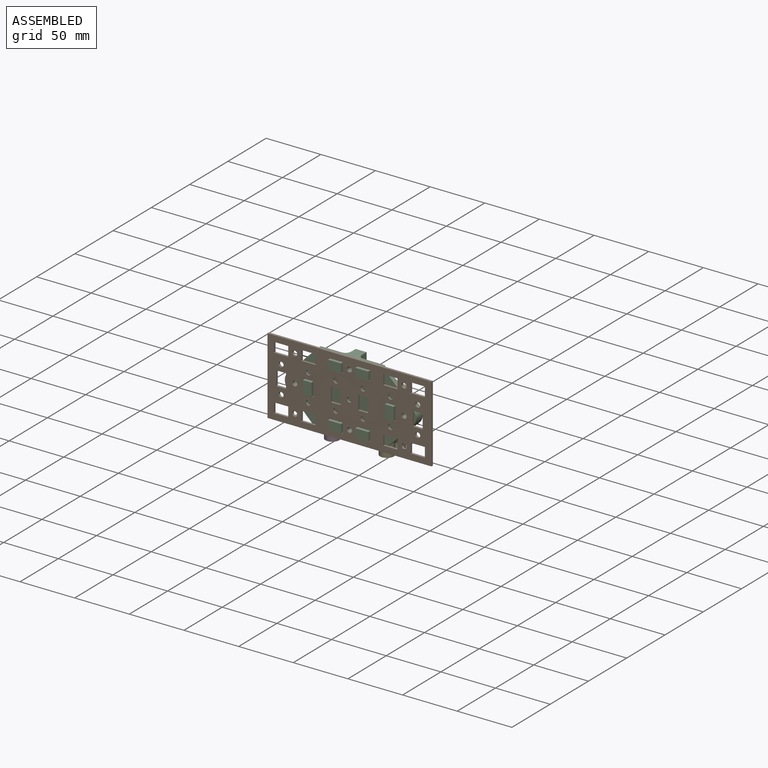
[diagram: assembled view]
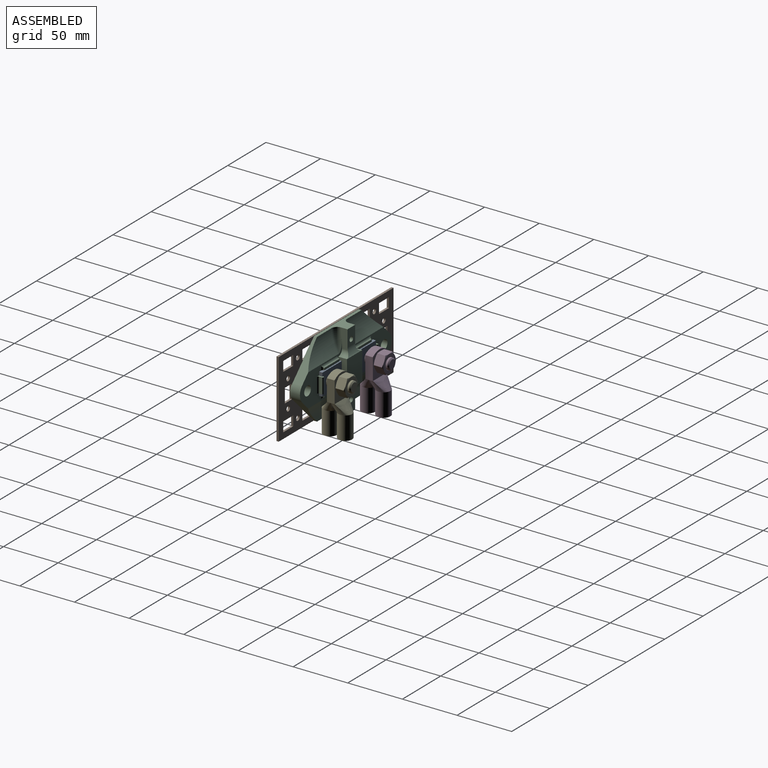
[diagram: assembled view, second angle]
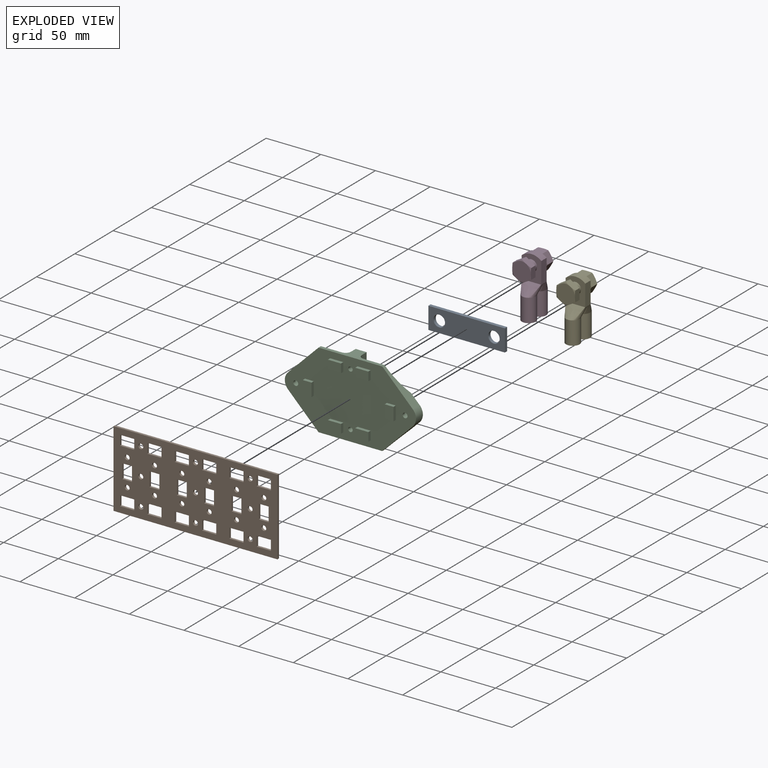
[diagram: exploded view]
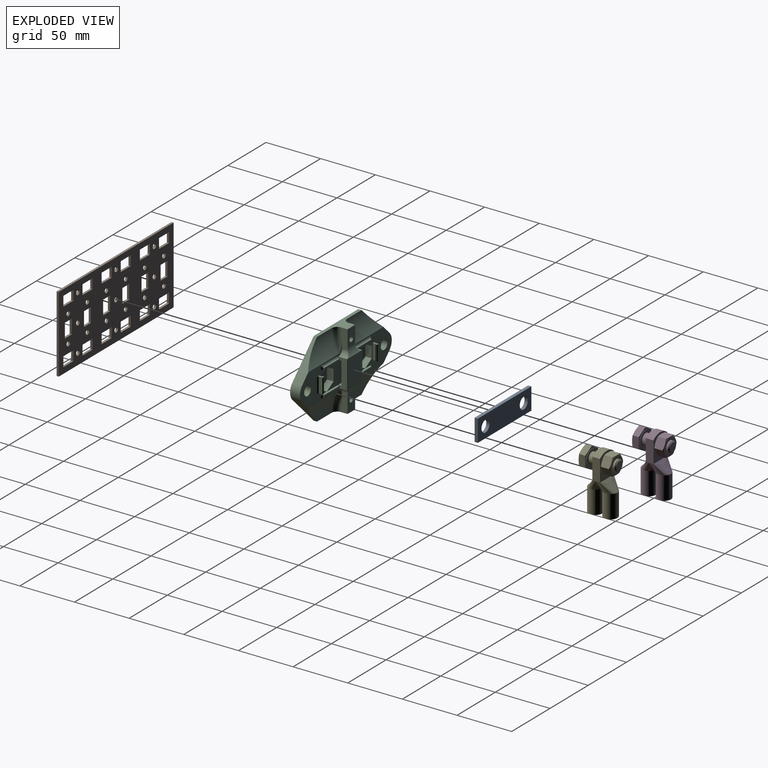
[diagram: exploded view, second angle]
FCSTD DOCUMENT  (FreeCAD 1.0R39109 (Git))
Label: PIM_cable_holder_busbar
License: All rights reserved
LicenseURL: https://en.wikipedia.org/wiki/All_rights_reserved
objects: Sketcher::SketchObject×11, PartDesign::Pad×7, PartDesign::Body×5, Part::FeaturePython×5, App::Link×5, PartDesign::Pocket×4, PartDesign::SubShapeBinder×2, App::Part×2, PartDesign::Fillet×2, PartDesign::Mirrored×2, PartDesign::LinearPattern×1, Part::Feature×1, PartDesign::FeatureBase×1, App::FeaturePython×1, Assembly::JointGroup×1, Assembly::AssemblyObject×1
note: 82 computed .brp shape members not serialized (recipe doc carries the construction recipe); baked Part::Feature solids carry a one-line shape summary decoded from their .brp

FEATURE [Sketcher::SketchObject] Sketch
  ArcFitTolerance = 1e-06
  AttachmentSupport = -> [XZ_Plane]
  FullyConstrained = true
  MakeInternals = false
  MapMode = 5
  Placement = pos=(0,0,0) rot=(1,0,0;1.5708rad)
  sketch-geometry (54):
    g0: Circle CenterX=0 CenterY=-7e-16 CenterZ=0 NormalX=0 NormalY=0 NormalZ=1 AngleXU=0 Radius=2.25
    g1: Circle CenterX=0 CenterY=-25 CenterZ=0 NormalX=0 NormalY=0 NormalZ=1 AngleXU=0 Radius=2.25
    g2: Circle CenterX=0 CenterY=25 CenterZ=0 NormalX=0 NormalY=0 NormalZ=1 AngleXU=0 Radius=2.25
    g3: LineSegment [constr] StartX=-12.5 StartY=-12.5 StartZ=0 EndX=12.5 EndY=-12.5 EndZ=0
    g4: LineSegment [constr] StartX=12.5 StartY=-12.5 StartZ=0 EndX=12.5 EndY=12.5 EndZ=0
    g5: LineSegment [constr] StartX=12.5 StartY=12.5 StartZ=0 EndX=-12.5 EndY=12.5 EndZ=0
    g6: LineSegment [constr] StartX=-12.5 StartY=12.5 StartZ=0 EndX=-12.5 EndY=-12.5 EndZ=0
    g7: GeomPoint [constr] X=0 Y=-7e-16 Z=0
    g8: LineSegment [constr] StartX=-12.5 StartY=-25 StartZ=0 EndX=12.5 EndY=-25 EndZ=0
    g9: LineSegment [constr] StartX=12.5 StartY=-25 StartZ=0 EndX=12.5 EndY=25 EndZ=0
    g10: LineSegment [constr] StartX=12.5 StartY=25 StartZ=0 EndX=-12.5 EndY=25 EndZ=0
    g11: LineSegment [constr] StartX=-12.5 StartY=25 StartZ=0 EndX=-12.5 EndY=-25 EndZ=0
    g12: GeomPoint [constr] X=0 Y=-7e-16 Z=0
    g13: LineSegment StartX=-19 StartY=20.5 StartZ=0 EndX=-6 EndY=20.5 EndZ=0
    g14: LineSegment StartX=-6 StartY=20.5 StartZ=0 EndX=-6 EndY=29.5 EndZ=0
    g15: LineSegment StartX=-6 StartY=29.5 StartZ=0 EndX=-19 EndY=29.5 EndZ=0
    g16: LineSegment StartX=-19 StartY=29.5 StartZ=0 EndX=-19 EndY=20.5 EndZ=0
    g17: GeomPoint [constr] X=-12.5 Y=25 Z=0
    g18: LineSegment StartX=-19 StartY=-29.5 StartZ=0 EndX=-6 EndY=-29.5 EndZ=0
    g19: LineSegment StartX=-6 StartY=-29.5 StartZ=0 EndX=-6 EndY=-20.5 EndZ=0
    g20: LineSegment StartX=-6 StartY=-20.5 StartZ=0 EndX=-19 EndY=-20.5 EndZ=0
    g21: LineSegment StartX=-19 StartY=-20.5 StartZ=0 EndX=-19 EndY=-29.5 EndZ=0
    g22: GeomPoint [constr] X=-12.5 Y=-25 Z=0
    g23: LineSegment StartX=6 StartY=-29.5 StartZ=0 EndX=19 EndY=-29.5 EndZ=0
    g24: LineSegment StartX=19 StartY=-29.5 StartZ=0 EndX=19 EndY=-20.5 EndZ=0
    g25: LineSegment StartX=19 StartY=-20.5 StartZ=0 EndX=6 EndY=-20.5 EndZ=0
    g26: LineSegment StartX=6 StartY=-20.5 StartZ=0 EndX=6 EndY=-29.5 EndZ=0
    g27: GeomPoint [constr] X=12.5 Y=-25 Z=0
    g28: LineSegment StartX=6 StartY=29.5 StartZ=0 EndX=6 EndY=20.5 EndZ=0
    g29: LineSegment StartX=6 StartY=20.5 StartZ=0 EndX=19 EndY=20.5 EndZ=0
    g30: LineSegment StartX=19 StartY=20.5 StartZ=0 EndX=19 EndY=29.5 EndZ=0
    g31: LineSegment StartX=19 StartY=29.5 StartZ=0 EndX=6 EndY=29.5 EndZ=0
    g32: GeomPoint [constr] X=12.5 Y=25 Z=0
    g33: GeomPoint X=-12.5 Y=0 Z=0
    g34: GeomPoint X=12.5 Y=0 Z=0
    g35: LineSegment StartX=-17 StartY=6.5 StartZ=0 EndX=-17 EndY=-6.5 EndZ=0
    g36: LineSegment StartX=-17 StartY=-6.5 StartZ=0 EndX=-8 EndY=-6.5 EndZ=0
    g37: LineSegment StartX=-8 StartY=-6.5 StartZ=0 EndX=-8 EndY=6.5 EndZ=0
    g38: LineSegment StartX=-8 StartY=6.5 StartZ=0 EndX=-17 EndY=6.5 EndZ=0
    g39: GeomPoint [constr] X=-12.5 Y=0 Z=0
    g40: LineSegment StartX=8 StartY=6.5 StartZ=0 EndX=8 EndY=-6.5 EndZ=0
    g41: LineSegment StartX=8 StartY=-6.5 StartZ=0 EndX=17 EndY=-6.5 EndZ=0
    g42: LineSegment StartX=17 StartY=-6.5 StartZ=0 EndX=17 EndY=6.5 EndZ=0
    g43: LineSegment StartX=17 StartY=6.5 StartZ=0 EndX=8 EndY=6.5 EndZ=0
    g44: GeomPoint [constr] X=12.5 Y=0 Z=0
    g45: Circle CenterX=-12.5 CenterY=12.5 CenterZ=0 NormalX=0 NormalY=0 NormalZ=1 AngleXU=0 Radius=2.25
    g46: Circle CenterX=12.5 CenterY=12.5 CenterZ=0 NormalX=0 NormalY=0 NormalZ=1 AngleXU=0 Radius=2.25
    g47: Circle CenterX=12.5 CenterY=-12.5 CenterZ=0 NormalX=0 NormalY=0 NormalZ=1 AngleXU=0 Radius=2.25
    g48: Circle CenterX=-12.5 CenterY=-12.5 CenterZ=0 NormalX=0 NormalY=0 NormalZ=1 AngleXU=0 Radius=2.25
    g49: LineSegment StartX=-25 StartY=-35 StartZ=0 EndX=25 EndY=-35 EndZ=0
    g50: LineSegment StartX=25 StartY=-35 StartZ=0 EndX=25 EndY=35 EndZ=0
    g51: LineSegment StartX=25 StartY=35 StartZ=0 EndX=-25 EndY=35 EndZ=0
    g52: LineSegment StartX=-25 StartY=35 StartZ=0 EndX=-25 EndY=-35 EndZ=0
    g53: GeomPoint [constr] X=0 Y=-7e-16 Z=0
  constraints (128):
    c: Diameter(g0) = 4.5
    c: Coincident(g0,g-1)
    c: PointOnObject(g1,g-2)
    c: PointOnObject(g2,g-2)
    c: Coincident(g3,g4)
    c: Coincident(g4,g5)
    c: Coincident(g5,g6)
    c: Coincident(g6,g3)
    c: Horizontal(g3)
    c: Horizontal(g5)
    c: Vertical(g4)
    c: Vertical(g6)
    c: Symmetric(g5,g3,g7)
    c: Coincident(g7,g0)
    c: Coincident(g8,g9)
    c: Coincident(g9,g10)
    c: Coincident(g10,g11)
    c: Coincident(g11,g8)
    c: Horizontal(g8)
    c: Horizontal(g10)
    c: Vertical(g9)
    c: Vertical(g11)
    c: Symmetric(g10,g8,g12)
    c: Coincident(g12,g0)
    c: Coincident(g13,g14)
    c: Coincident(g14,g15)
    c: Coincident(g15,g16)
    c: Coincident(g16,g13)
    c: Horizontal(g13)
    c: Horizontal(g15)
    c: Vertical(g14)
    c: Vertical(g16)
    c: Symmetric(g15,g13,g17)
    c: Distance(g14,g16) = 13
    c: Distance(g13,g15) = 9
    c: Coincident(g17,g10)
    c: Coincident(g18,g19)
    c: Coincident(g19,g20)
    c: Coincident(g20,g21)
    c: Coincident(g21,g18)
    c: Horizontal(g18)
    c: Horizontal(g20)
    c: Vertical(g19)
    c: Vertical(g21)
    c: Symmetric(g20,g18,g22)
    c: Coincident(g22,g8)
    c: Coincident(g23,g24)
    c: Coincident(g24,g25)
    c: Coincident(g25,g26)
    c: Coincident(g26,g23)
    c: Horizontal(g23)
    c: Horizontal(g25)
    c: Vertical(g24)
    c: Vertical(g26)
    c: Symmetric(g25,g23,g27)
    c: Coincident(g27,g8)
    c: Coincident(g28,g29)
    c: Coincident(g29,g30)
    c: Coincident(g30,g31)
    c: Coincident(g31,g28)
    c: Vertical(g28)
    c: Vertical(g30)
    c: Horizontal(g29)
    c: Horizontal(g31)
    c: Symmetric(g30,g28,g32)
    c: Coincident(g32,g9)
    c: PointOnObject(g33,g11)
    c: PointOnObject(g34,g9)
    c: PointOnObject(g34,g-1)
    c: PointOnObject(g33,g-1)
    c: Coincident(g35,g36)
    c: Coincident(g36,g37)
    c: Coincident(g37,g38)
    c: Coincident(g38,g35)
    c: Vertical(g35)
    c: Vertical(g37)
    c: Horizontal(g36)
    c: Horizontal(g38)
    c: Symmetric(g37,g35,g39)
    c: Coincident(g39,g33)
    c: Coincident(g40,g41)
    c: Coincident(g41,g42)
    c: Coincident(g42,g43)
    c: Coincident(g43,g40)
    c: Vertical(g40)
    c: Vertical(g42)
    c: Horizontal(g41)
    c: Horizontal(g43)
    c: Symmetric(g42,g40,g44)
    c: Coincident(g44,g34)
    c: PointOnObject(g5,g11)
    c: PointOnObject(g1,g8)
    c: PointOnObject(g2,g10)
    c: Coincident(g45,g5)
    c: Coincident(g46,g4)
    c: Coincident(g47,g3)
    c: Coincident(g48,g3)
    c: Equal(g1,g48)
    c: Equal(g48,g45)
    c: Equal(g45,g46)
    c: Equal(g46,g47)
    c: Equal(g47,g2)
    c: Equal(g2,g0)
    c: Equal(g15,g31)
    c: Equal(g31,g25)
    c: Equal(g25,g20)
    c: Equal(g20,g37)
    c: Equal(g37,g40)
    c: Equal(g16,g38)
    c: Equal(g38,g21)
    c: Equal(g21,g26)
    c: Equal(g26,g41)
    c: Equal(g41,g30)
    c: DistanceY(g18,g15) = 59
    c: DistanceX(g15,g30) = 38
    c: DistanceY(g3,g4) = 25
    c: Coincident(g49,g50)
    c: Coincident(g50,g51)
    c: Coincident(g51,g52)
    c: Coincident(g52,g49)
    c: Horizontal(g49)
    c: Horizontal(g51)
    c: Vertical(g50)
    c: Vertical(g52)
    c: Symmetric(g51,g49,g53)
    c: Distance(g50,g52) = 50
    c: Distance(g49,g51) = 70
    c: Coincident(g53,g0)
FEATURE [PartDesign::Pad] Pad
  Direction = (0,-1,2e-16)
  Length = 2
  Length2 = 10
  Placement = pos=(0,0,0) rot=(1,0,0;1.5708rad)
  Profile = -> Sketch
  ReferenceAxis = -> Sketch [N_Axis]
  Refine = true
  Reversed = true
  Suppressed = false
  Type = 0
FEATURE [PartDesign::LinearPattern] LinearPattern
  BaseFeature = -> Pad
  Direction = -> X_Axis
  Length = 100
  Mode = 1
  Occurrences = 3
  Offset = 50
  Placement = pos=(0,0,0) rot=(1,0,0;1.5708rad)
  Refine = true
  Suppressed = false
  TransformMode = 1
FEATURE [PartDesign::Body] Body  label="baseplate"
  AllowCompound = false
  Group = -> [Sketch,Pad,LinearPattern]
  Origin = -> Origin
  Tip = -> LinearPattern
FEATURE [Part::FeaturePython] Screw  label="M10x25-Screw"  # WARN: FeaturePython — macro-defined, semantics opaque (R4)
  Diameter = 10
  Invert = false
  LeftHanded = false
  Length = 1
  LengthCustom = 25
  MatchOuter = false
  OffsetAngle = 0
  Placement = pos=(25,12,1.6e-15) rot=(-0.935113,0.250563,-0.250563;4.64535rad)
  Thread = false
  Type = 40
FEATURE [Sketcher::SketchObject] Sketch002
  ArcFitTolerance = 1e-06
  AttachmentSupport = -> [XZ_Plane002]
  FullyConstrained = true
  MakeInternals = false
  MapMode = 5
  Placement = pos=(0,0,0) rot=(1,0,0;1.5708rad)
  sketch-geometry (7):
    g0: LineSegment StartX=15 StartY=-10 StartZ=0 EndX=85 EndY=-10 EndZ=0
    g1: LineSegment StartX=85 StartY=-10 StartZ=0 EndX=85 EndY=10 EndZ=0
    g2: LineSegment StartX=85 StartY=10 StartZ=0 EndX=15 EndY=10 EndZ=0
    g3: LineSegment StartX=15 StartY=10 StartZ=0 EndX=15 EndY=-10 EndZ=0
    g4: GeomPoint [constr] X=50 Y=0 Z=0
    g5: Circle CenterX=25 CenterY=0 CenterZ=0 NormalX=0 NormalY=0 NormalZ=1 AngleXU=0 Radius=5.25
    g6: Circle CenterX=75 CenterY=0 CenterZ=0 NormalX=0 NormalY=0 NormalZ=1 AngleXU=0 Radius=5.25
  constraints (18):
    c: Coincident(g0,g1)
    c: Coincident(g1,g2)
    c: Coincident(g2,g3)
    c: Coincident(g3,g0)
    c: Horizontal(g0)
    c: Horizontal(g2)
    c: Vertical(g1)
    c: Vertical(g3)
    c: Symmetric(g2,g0,g4)
    c: Distance(g1,g3) = 70
    c: Distance(g0,g2) = 20
    c: PointOnObject(g4,g-1)
    c: Diameter(g5) = 10.5
    c: PointOnObject(g5,g-1)
    c: DistanceX(g5,g6) = 50
    c: Symmetric(g5,g6,g4)
    c: Distance(g-1,g3) = 15
    c: Equal(g5,g6)
FEATURE [PartDesign::Pad] Pad002
  Direction = (0,-1,2e-16)
  Length = 3
  Length2 = 10
  Placement = pos=(0,0,0) rot=(1,0,0;1.5708rad)
  Profile = -> Sketch002
  ReferenceAxis = -> Sketch002 [N_Axis]
  Refine = true
  Suppressed = false
  Type = 0
FEATURE [PartDesign::Body] Body002  label="Busbar"
  AllowCompound = false
  Group = -> [Sketch002,Pad002]
  Origin = -> Origin002
  Placement = pos=(0,14,0) rot=(0,0,1;0rad)
  Tip = -> Pad002
FEATURE [Part::FeaturePython] Nut  label="M10-Nut"  # WARN: FeaturePython — macro-defined, semantics opaque (R4)
  Diameter = 10
  Invert = false
  LeftHanded = false
  MatchOuter = false
  OffsetAngle = 0
  Placement = pos=(25,26,2e-16) rot=(1,0,0;4.71239rad)
  Thread = false
  Type = 31
FEATURE [Part::Feature] Part__Feature  label="cosse_top"
  Placement = pos=(25,22,0) rot=(0,0,1;0rad)
  shape: bbox 18.79 x 13.68 x 53 mm, 18 faces (baked)
FEATURE [PartDesign::FeatureBase] Clone
  BaseFeature = -> Part__Feature
  Placement = pos=(25,20,0) rot=(0,0,1;0rad)
  Suppressed = false
FEATURE [PartDesign::Body] Body003  label="cosse_bot"
  AllowCompound = false
  Group = -> [Clone]
  Origin = -> Origin003
  Placement = pos=(50,42,0) rot=(0,0,1;3.14159rad)
  Tip = -> Clone
FEATURE [PartDesign::SubShapeBinder] Binder
  BindCopyOnChange = 0
  BindMode = 0
  ClaimChildren = false
  Context = -> Part [Body004.Binder.]
  Fuse = false
  MakeFace = true
  OffsetFill = false
  OffsetIntersection = false
  OffsetJoinType = 0
  OffsetOpenResult = false
  PartialLoad = false
  Refine = true
  Relative = true
  Support = -> [Body[LinearPattern.Face98]]
  _Version = 2
FEATURE [Sketcher::SketchObject] Sketch003
  ArcFitTolerance = 1e-06
  AttachmentSupport = -> [Binder]
  ExternalGeometry = -> [Binder]
  FullyConstrained = true
  MakeInternals = false
  MapMode = 5
  Placement = pos=(0,2,-9e-16) rot=(0,0.707107,0.707107;3.14159rad)
  sketch-geometry (11):
    g0: LineSegment StartX=-50 StartY=-35 StartZ=0 EndX=-20.8579 EndY=-35 EndZ=0
    g1: LineSegment StartX=-20.8579 StartY=-35 StartZ=0 EndX=7.07107 EndY=-7.07107 EndZ=0
    g2: ArcOfCircle CenterX=0 CenterY=0 CenterZ=0 NormalX=0 NormalY=0 NormalZ=1 AngleXU=0 Radius=10 StartAngle=5.49779 EndAngle=7.06858
    g3: LineSegment StartX=7.07107 StartY=7.07107 StartZ=0 EndX=-20.8579 EndY=35 EndZ=0
    g4: LineSegment StartX=-20.8579 StartY=35 StartZ=0 EndX=-50 EndY=35 EndZ=0
    g5: LineSegment StartX=-50 StartY=-35 StartZ=0 EndX=-50 EndY=-27.05 EndZ=0
    g6: Circle CenterX=0 CenterY=0 CenterZ=0 NormalX=0 NormalY=0 NormalZ=1 AngleXU=0 Radius=2.25
    g7: ArcOfCircle CenterX=-50 CenterY=-25 CenterZ=0 NormalX=0 NormalY=0 NormalZ=1 AngleXU=0 Radius=2.05 StartAngle=4.71239 EndAngle=7.85398
    g8: LineSegment StartX=-50 StartY=-22.95 StartZ=0 EndX=-50 EndY=22.95 EndZ=0
    g9: ArcOfCircle CenterX=-50 CenterY=25 CenterZ=0 NormalX=0 NormalY=0 NormalZ=1 AngleXU=0 Radius=2.05 StartAngle=4.71239 EndAngle=7.85398
    g10: LineSegment StartX=-50 StartY=27.05 StartZ=0 EndX=-50 EndY=35 EndZ=0
  constraints (28):
    c: Symmetric(g-4,g-4,g0)
    c: PointOnObject(g0,g-4)
    c: Coincident(g0,g1)
    c: Coincident(g2,g-1)
    c: PointOnObject(g3,g-5)
    c: Coincident(g4,g3)
    c: Symmetric(g-5,g-5,g4)
    c: Coincident(g5,g0)
    c: Coincident(g10,g4)
    c: Coincident(g6,g2)
    c: Tangent(g6,g-3)
    c: Vertical(g0,g3)
    c: Angle(g-4,g1) = 0.785398
    c: Radius(g2) = 10
    c: Tangent(g2,g1) = -1.5708
    c: Tangent(g3,g2) = -1.5708
    c: Coincident(g7,g-7)
    c: Coincident(g5,g7)
    c: Vertical(g8)
    c: Vertical(g5)
    c: Coincident(g9,g-8)
    c: Coincident(g8,g9)
    c: Coincident(g10,g9)
    c: Vertical(g10)
    c: Vertical(g8,g9)
    c: Coincident(g7,g8)
    c: Equal(g9,g7)
    c: Radius(g7) = 2.05
FEATURE [PartDesign::Pad] Pad003
  Direction = (0,1,-2e-16)
  Length = 9
  Length2 = 10
  Profile = -> Sketch003
  ReferenceAxis = -> Sketch003 [N_Axis]
  Refine = true
  Suppressed = false
  Type = 0
FEATURE [Sketcher::SketchObject] Sketch004
  ArcFitTolerance = 1e-06
  AttachmentSupport = -> [Pad003]
  FullyConstrained = true
  MakeInternals = false
  MapMode = 5
  Placement = pos=(0,11,0) rot=(0,0.707107,0.707107;3.14159rad)
  sketch-geometry (8):
    g0: Circle CenterX=0 CenterY=0 CenterZ=0 NormalX=0 NormalY=0 NormalZ=1 AngleXU=0 Radius=4.35
    g1: LineSegment StartX=-16.1232 StartY=-5.125 StartZ=0 EndX=-16.1232 EndY=5.125 EndZ=0
    g2: LineSegment StartX=-16.1232 StartY=5.125 StartZ=0 EndX=-25 EndY=10.25 EndZ=0
    g3: LineSegment StartX=-25 StartY=10.25 StartZ=0 EndX=-33.8768 EndY=5.125 EndZ=0
    g4: LineSegment StartX=-33.8768 StartY=5.125 StartZ=0 EndX=-33.8768 EndY=-5.125 EndZ=0
    g5: LineSegment StartX=-33.8768 StartY=-5.125 StartZ=0 EndX=-25 EndY=-10.25 EndZ=0
    g6: LineSegment StartX=-25 StartY=-10.25 StartZ=0 EndX=-16.1232 EndY=-5.125 EndZ=0
    g7: Circle [constr] CenterX=-25 CenterY=0 CenterZ=0 NormalX=0 NormalY=0 NormalZ=1 AngleXU=0 Radius=10.25
  constraints (19):
    c: Diameter(g0) = 8.7
    c: Coincident(g0,g-1)
    c: Coincident(g1,g2)
    c: Coincident(g2,g3)
    c: Coincident(g3,g4)
    c: Coincident(g4,g5)
    c: Coincident(g5,g6)
    c: Coincident(g6,g1)
    c: Equal(g1, g2-g6) x5
    c: PointOnObject(g1,g7)
    c: PointOnObject(g2,g7)
    c: PointOnObject(g3,g7)
    c: PointOnObject(g4,g7)
    c: PointOnObject(g5,g7)
    c: PointOnObject(g6,g7)
    c: Vertical(g1)
    c: DistanceY(g5,g2) = 20.5
    c: PointOnObject(g7,g-1)
    c: DistanceX(g7,g0) = 25
FEATURE [PartDesign::Pocket] Pocket
  BaseFeature = -> Pad003
  Direction = (0,-1,2e-16)
  Length = 6
  Length2 = 5
  Profile = -> Sketch004
  ReferenceAxis = -> Sketch004 [N_Axis]
  Refine = true
  Suppressed = false
  Type = 0
FEATURE [Sketcher::SketchObject] Sketch005
  ArcFitTolerance = 1e-06
  AttachmentSupport = -> [Pocket]
  ExternalGeometry = -> [Pocket]
  FullyConstrained = true
  MakeInternals = false
  MapMode = 5
  Placement = pos=(50,0,0) rot=(0.57735,0.57735,0.57735;2.0944rad)
  sketch-geometry (3):
    g0: LineSegment StartX=11 StartY=-35 StartZ=0 EndX=5 EndY=-35 EndZ=0
    g1: LineSegment StartX=11 StartY=-15 StartZ=0 EndX=11 EndY=-35 EndZ=0
    g2: ArcOfCircle CenterX=39.9977 CenterY=-34.5993 CenterZ=0 NormalX=0 NormalY=0 NormalZ=1 AngleXU=0 Radius=35 StartAngle=2.54723 EndAngle=3.15304
  constraints (9):
    c: Coincident(g-5,g0)
    c: PointOnObject(g0,g-4)
    c: PointOnObject(g1,g-5)
    c: Coincident(g1,g0)
    c: DistanceX(g-4,g0) = 3
    c: Coincident(g2,g1)
    c: Coincident(g2,g0)
    c: DistanceY(g1,g1) = 20
    c: Radius(g2) = 35
FEATURE [PartDesign::Pocket] Pocket001
  BaseFeature = -> Pocket
  Direction = (-1,0,0)
  Length = 50
  Length2 = -5
  Profile = -> Sketch005
  ReferenceAxis = -> Sketch005 [N_Axis]
  Refine = true
  Suppressed = false
  Type = 4
FEATURE [Sketcher::SketchObject] Sketch007
  ArcFitTolerance = 1e-06
  ExternalGeometry = -> [Binder]
  FullyConstrained = true
  MakeInternals = false
  MapMode = 5
  Placement = pos=(0,2,0) rot=(1,0,0;1.5708rad)
  sketch-geometry (8):
    g0: LineSegment StartX=31.5 StartY=-29 StartZ=0 EndX=43.5 EndY=-29 EndZ=0
    g1: LineSegment StartX=43.5 StartY=-29 StartZ=0 EndX=43.5 EndY=-21 EndZ=0
    g2: LineSegment StartX=43.5 StartY=-21 StartZ=0 EndX=31.5 EndY=-21 EndZ=0
    g3: LineSegment StartX=31.5 StartY=-21 StartZ=0 EndX=31.5 EndY=-29 EndZ=0
    g4: LineSegment StartX=16.5 StartY=-6 StartZ=0 EndX=16.5 EndY=0 EndZ=0
    g5: LineSegment StartX=16.5 StartY=0 StartZ=0 EndX=8.5 EndY=0 EndZ=0
    g6: LineSegment StartX=8.5 StartY=0 StartZ=0 EndX=8.5 EndY=-6 EndZ=0
    g7: LineSegment StartX=8.5 StartY=-6 StartZ=0 EndX=16.5 EndY=-6 EndZ=0
  constraints (24):
    c: Coincident(g0,g1)
    c: Coincident(g1,g2)
    c: Coincident(g2,g3)
    c: Coincident(g3,g0)
    c: Horizontal(g0)
    c: Horizontal(g2)
    c: Vertical(g1)
    c: Vertical(g3)
    c: DistanceY(g1,g-4) = 0.5
    c: DistanceX(g1,g-4) = 0.5
    c: DistanceX(g-3,g0) = 0.5
    c: DistanceY(g-3,g0) = 0.5
    c: Coincident(g4,g5)
    c: Coincident(g5,g6)
    c: Coincident(g6,g7)
    c: Coincident(g7,g4)
    c: Vertical(g4)
    c: Vertical(g6)
    c: Horizontal(g5)
    c: Horizontal(g7)
    c: PointOnObject(g5,g-1)
    c: Distance(g5,g-6) = 0.5
    c: DistanceX(g4,g-5) = 0.5
    c: DistanceY(g-6,g6) = 0.5
FEATURE [PartDesign::Pad] Pad005
  BaseFeature = -> Pocket001
  Direction = (0,-1,2e-16)
  Length = 3
  Length2 = 10
  Profile = -> Sketch007
  ReferenceAxis = -> Sketch007 [N_Axis]
  Refine = true
  Suppressed = false
  Type = 0
FEATURE [Sketcher::SketchObject] Sketch008
  ArcFitTolerance = 1e-06
  AttachmentSupport = -> [XY_Plane005]
  FullyConstrained = true
  MakeInternals = false
  MapMode = 5
  sketch-geometry (7):
    g0: LineSegment StartX=14.9232 StartY=11 StartZ=0 EndX=14.9232 EndY=14.1 EndZ=0
    g1: LineSegment StartX=14.9232 StartY=14.1 StartZ=0 EndX=15.9232 EndY=14.1 EndZ=0
    g2: LineSegment StartX=15.9232 StartY=14.1 StartZ=0 EndX=15.2893 EndY=15.1981 EndZ=0
    g3: LineSegment StartX=13.4232 StartY=14.6981 StartZ=0 EndX=13.4232 EndY=12.5 EndZ=0
    g4: LineSegment StartX=14.9232 StartY=11 StartZ=0 EndX=11.9232 EndY=11 EndZ=0
    g5: ArcOfCircle CenterX=11.9232 CenterY=12.5 CenterZ=0 NormalX=0 NormalY=0 NormalZ=1 AngleXU=0 Radius=1.5 StartAngle=4.71239 EndAngle=6.28319
    g6: ArcOfCircle CenterX=14.4232 CenterY=14.6981 CenterZ=0 NormalX=0 NormalY=0 NormalZ=1 AngleXU=0 Radius=1 StartAngle=0.523599 EndAngle=3.14159
  constraints (19):
    c: PointOnObject(g0,g-4)
    c: Vertical(g0)
    c: Coincident(g1,g0)
    c: Horizontal(g1)
    c: Vertical(g3)
    c: Coincident(g4,g0)
    c: PointOnObject(g4,g-4)
    c: Tangent(g6,g2) = -1.5708
    c: Tangent(g6,g3) = -1.5708
    c: Tangent(g5,g3) = 1.5708
    c: Tangent(g5,g4) = 1.5708
    c: Radius(g5) = 1.5
    c: Distance(g0,g3) = 1.5
    c: DistanceX(g0,g-3) = 1.2
    c: Angle(g2,g1) = 1.0472
    c: Distance(g1,g1) = 1
    c: Coincident(g2,g1)
    c: Radius(g6) = 1
    c: DistanceY(g0,g0) = 3.1
FEATURE [App::Part] Part001  label="Lug"
  Group = -> [Nut,Screw,Body003,Part__Feature]
  Origin = -> Origin006
FEATURE [App::Link] baseplate  label="baseplate001"
  LinkPlacement = pos=(24.3,24.3,24.3) rot=(0,0,1;0rad)
  LinkedObject = -> Body
  Placement = pos=(24.3,24.3,24.3) rot=(0,0,1;0rad)
FEATURE [App::Link] Busbar  label="Busbar001"
  LinkPlacement = pos=(24.25,38.25,24.25) rot=(0,0,1;0rad)
  LinkedObject = -> Body002
  Placement = pos=(24.25,38.25,24.25) rot=(0,0,1;0rad)
FEATURE [App::Link] leftLug  label="Lug001"
  LinkPlacement = pos=(24,23,24) rot=(0,0,1;0rad)
  LinkedObject = -> Part001
  Placement = pos=(24,23,24) rot=(0,0,1;0rad)
FEATURE [App::Link] leftLug001  label="Lug002"
  LinkPlacement = pos=(74.0002,23.0001,24) rot=(0,0,1;0rad)
  LinkedObject = -> Part001
  Placement = pos=(74.0002,23.0001,24) rot=(0,0,1;0rad)
FEATURE [App::FeaturePython] GroundedJoint  # Assembly grounded joint (typed FeaturePython)
  ObjectToGround = -> baseplate
  Placement = pos=(24.3,24.3,24.3) rot=(0,0,1;0rad)
FEATURE [Assembly::JointGroup] Joints
  Group = -> [GroundedJoint]
FEATURE [App::Link] holder  label="holder001"
  LinkPlacement = pos=(24,24,24) rot=(0,0,1;0rad)
  LinkedObject = -> Part
  Placement = pos=(24,24,24) rot=(0,0,1;0rad)
FEATURE [PartDesign::SubShapeBinder] Binder001
  BindCopyOnChange = 0
  BindMode = 0
  ClaimChildren = false
  Fuse = false
  MakeFace = true
  OffsetFill = false
  OffsetIntersection = false
  OffsetJoinType = 0
  OffsetOpenResult = false
  PartialLoad = false
  Refine = true
  Relative = true
  Support = -> [Body[LinearPattern.Face98]]
  _Version = 2
FEATURE [Sketcher::SketchObject] Sketch009
  ArcFitTolerance = 1e-06
  AttachmentSupport = -> [XZ_Plane008]
  ExternalGeometry = -> [Binder001]
  FullyConstrained = true
  MakeInternals = false
  MapMode = 5
  Placement = pos=(0,0,0) rot=(1,0,0;1.5708rad)
  sketch-geometry (23):
    g0: GeomPoint [constr] X=50 Y=-1.3e-15 Z=0
    g1: LineSegment StartX=40 StartY=-13 StartZ=0 EndX=40.1 EndY=-13 EndZ=0
    g2: LineSegment StartX=60 StartY=-13 StartZ=0 EndX=60 EndY=13 EndZ=0
    g3: LineSegment StartX=60 StartY=13 StartZ=0 EndX=59.9 EndY=13 EndZ=0
    g4: LineSegment StartX=40 StartY=13 StartZ=0 EndX=40 EndY=-13 EndZ=0
    g5: GeomPoint [constr] X=50 Y=-1.3e-15 Z=0
    g6: LineSegment StartX=45 StartY=-35 StartZ=0 EndX=55 EndY=-35 EndZ=0
    g7: LineSegment StartX=55 StartY=-35 StartZ=0 EndX=55 EndY=-17.9 EndZ=0
    g8: LineSegment StartX=55 StartY=35 StartZ=0 EndX=45 EndY=35 EndZ=0
    g9: LineSegment StartX=45 StartY=35 StartZ=0 EndX=45 EndY=17.9 EndZ=0
    g10: GeomPoint [constr] X=50 Y=-1.3e-15 Z=0
    g11: LineSegment StartX=40.1 StartY=13 StartZ=0 EndX=40 EndY=13 EndZ=0
    g12: LineSegment StartX=45 StartY=-17.9 StartZ=0 EndX=45 EndY=-35 EndZ=0
    g13: LineSegment StartX=55 StartY=17.9 StartZ=0 EndX=55 EndY=35 EndZ=0
    g14: LineSegment StartX=59.9 StartY=-13 StartZ=0 EndX=60 EndY=-13 EndZ=0
    g15: ArcOfCircle CenterX=59.9 CenterY=17.9 CenterZ=0 NormalX=0 NormalY=0 NormalZ=1 AngleXU=0 Radius=4.9 StartAngle=3.14159 EndAngle=4.71239
    g16: ArcOfCircle CenterX=40.1 CenterY=17.9 CenterZ=0 NormalX=0 NormalY=0 NormalZ=1 AngleXU=0 Radius=4.9 StartAngle=4.71239 EndAngle=6.28319
    g17: GeomPoint [constr] X=45 Y=13 Z=0
    g18: ArcOfCircle CenterX=40.1 CenterY=-17.9 CenterZ=0 NormalX=0 NormalY=0 NormalZ=1 AngleXU=0 Radius=4.9 StartAngle=0 EndAngle=1.5708
    g19: GeomPoint [constr] X=45 Y=-13 Z=0
    g20: ArcOfCircle CenterX=59.9 CenterY=-17.9 CenterZ=0 NormalX=0 NormalY=0 NormalZ=1 AngleXU=0 Radius=4.9 StartAngle=1.5708 EndAngle=3.14159
    g21: Circle CenterX=50 CenterY=-25 CenterZ=0 NormalX=0 NormalY=0 NormalZ=1 AngleXU=0 Radius=2.25
    g22: Circle CenterX=50 CenterY=25 CenterZ=0 NormalX=0 NormalY=0 NormalZ=1 AngleXU=0 Radius=2.25
  constraints (53):
    c: Coincident(g0,g-5)
    c: Coincident(g14,g2)
    c: Coincident(g2,g3)
    c: Coincident(g11,g4)
    c: Coincident(g4,g1)
    c: Horizontal(g1)
    c: Horizontal(g3)
    c: Vertical(g2)
    c: Vertical(g4)
    c: Symmetric(g3,g1,g5)
    c: Distance(g2,g4) = 20
    c: Distance(g1,g11) = 26
    c: Coincident(g5,g0)
    c: Coincident(g6,g7)
    c: Coincident(g13,g8)
    c: Coincident(g8,g9)
    c: Coincident(g12,g6)
    c: Horizontal(g6)
    c: Horizontal(g8)
    c: Vertical(g7)
    c: Vertical(g9)
    c: Symmetric(g8,g6,g10)
    c: Distance(g7,g12) = 10
    c: Distance(g6,g8) = 70
    c: Coincident(g10,g0)
    c: Vertical(g13)
    c: Vertical(g12)
    c: Horizontal(g11)
    c: Horizontal(g14)
    c: Vertical(g17,g19)
    c: Tangent(g3,g15) = 1.5708
    c: Tangent(g13,g15) = 1.5708
    c: PointOnObject(g17,g9)
    c: PointOnObject(g17,g11)
    c: Tangent(g9,g16) = 1.5708
    c: Tangent(g11,g16) = 1.5708
    c: PointOnObject(g19,g1)
    c: PointOnObject(g19,g12)
    c: Tangent(g1,g18) = 1.5708
    c: Tangent(g12,g18) = 1.5708
    c: Tangent(g14,g20) = 1.5708
    c: Tangent(g7,g20) = 1.5708
    c: Equal(g20,g15)
    c: Equal(g15,g16)
    c: Equal(g16,g18)
    c: Horizontal(g14,g1)
    c: Horizontal(g11,g3)
    c: Equal(g1,g14)
    c: Radius(g18) = 4.9
    c: Coincident(g21,g-4)
    c: Equal(g21,g-4)
    c: Coincident(g22,g-3)
    c: Equal(g22,g-3)
FEATURE [PartDesign::Pad] Pad007
  Direction = (0,-1,2e-16)
  Length = 8
  Length2 = 10
  Placement = pos=(0,0,0) rot=(1,0,0;1.5708rad)
  Profile = -> Sketch009
  ReferenceAxis = -> Sketch009 [N_Axis]
  Refine = true
  Suppressed = false
  Type = 0
FEATURE [Sketcher::SketchObject] Sketch010
  ArcFitTolerance = 1e-06
  AttachmentSupport = -> [Pad007]
  ExternalGeometry = -> [Pad007]
  FullyConstrained = true
  MakeInternals = false
  MapMode = 5
  Placement = pos=(40,0,0) rot=(0.707107,0,-0.707107;3.14159rad)
  sketch-geometry (5):
    g0: LineSegment StartX=-10.25 StartY=5.1 StartZ=0 EndX=10.25 EndY=5.1 EndZ=0
    g1: LineSegment StartX=10.25 StartY=5.1 StartZ=0 EndX=10.25 EndY=8 EndZ=0
    g2: LineSegment StartX=10.25 StartY=8 StartZ=0 EndX=-10.25 EndY=8 EndZ=0
    g3: LineSegment StartX=-10.25 StartY=8 StartZ=0 EndX=-10.25 EndY=5.1 EndZ=0
    g4: GeomPoint [constr] X=0 Y=6.55 Z=0
  constraints (13):
    c: Coincident(g0,g1)
    c: Coincident(g1,g2)
    c: Coincident(g2,g3)
    c: Coincident(g3,g0)
    c: Horizontal(g0)
    c: Horizontal(g2)
    c: Vertical(g1)
    c: Vertical(g3)
    c: Symmetric(g2,g0,g4)
    c: PointOnObject(g4,g-2)
    c: PointOnObject(g1,g-3)
    c: DistanceX(g0,g0) = 20.5
    c: Distance(g3,g3) = 2.9
FEATURE [PartDesign::Pocket] Pocket002
  BaseFeature = -> Pad007
  Direction = (1,0,2e-16)
  Length = 5
  Length2 = 5
  Placement = pos=(0,0,0) rot=(1,0,0;1.5708rad)
  Profile = -> Sketch010
  ReferenceAxis = -> Sketch010 [N_Axis]
  Refine = true
  Suppressed = false
  Type = 2
FEATURE [Sketcher::SketchObject] Sketch011
  ArcFitTolerance = 1e-06
  AttachmentSupport = -> [Pocket002]
  ExternalGeometry = -> [Pocket002]
  FullyConstrained = true
  MakeInternals = false
  MapMode = 5
  Placement = pos=(45,0,0) rot=(0.707107,0,-0.707107;3.14159rad)
  sketch-geometry (8):
    g0: LineSegment StartX=-35 StartY=3 StartZ=0 EndX=-19.9 EndY=3 EndZ=0
    g1: ArcOfCircle CenterX=-19.9 CenterY=-6.435 CenterZ=0 NormalX=0 NormalY=0 NormalZ=1 AngleXU=0 Radius=9.435 StartAngle=0.750542 EndAngle=1.5708
    g2: LineSegment StartX=-35 StartY=3 StartZ=0 EndX=-35 EndY=-8e-15 EndZ=0
    g3: LineSegment StartX=-35 StartY=-7.8e-15 StartZ=0 EndX=-13 EndY=-7.8e-15 EndZ=0
    g4: LineSegment StartX=13 StartY=8.08e-14 StartZ=0 EndX=35 EndY=7.8e-15 EndZ=0
    g5: LineSegment StartX=35 StartY=7.8e-15 StartZ=0 EndX=35 EndY=3 EndZ=0
    g6: LineSegment StartX=35 StartY=3 StartZ=0 EndX=19.9 EndY=3 EndZ=0
    g7: ArcOfCircle CenterX=19.9 CenterY=-6.435 CenterZ=0 NormalX=0 NormalY=0 NormalZ=1 AngleXU=0 Radius=9.435 StartAngle=1.5708 EndAngle=2.39105
  constraints (21):
    c: PointOnObject(g0,g-7)
    c: Horizontal(g0)
    c: Coincident(g1,g-6)
    c: Coincident(g2,g0)
    c: Coincident(g2,g-7)
    c: Coincident(g3,g2)
    c: PointOnObject(g3,g1)
    c: Horizontal(g3)
    c: DistanceY(g0,g-7) = 5
    c: Tangent(g1,g0) = 1.5708
    c: DistanceX(g1,g-9) = 2
    c: Coincident(g4,g-4)
    c: Coincident(g4,g-8)
    c: Coincident(g5,g4)
    c: PointOnObject(g5,g-8)
    c: Horizontal(g6)
    c: Coincident(g7,g4)
    c: Tangent(g7,g6) = -1.5708
    c: Coincident(g5,g6)
    c: Equal(g2,g5)
    c: Equal(g0,g6)
FEATURE [PartDesign::Pocket] Pocket003
  BaseFeature = -> Pocket002
  Direction = (1,0,2e-16)
  Length = 5
  Length2 = 5
  Midplane = true
  Placement = pos=(0,0,0) rot=(1,0,0;1.5708rad)
  Profile = -> Sketch011
  ReferenceAxis = -> Sketch011 [N_Axis]
  Refine = true
  Suppressed = false
  Type = 1
FEATURE [PartDesign::Body] Body005  label="holder_lid"
  AllowCompound = false
  Group = -> [Sketch009,Binder001,Pad007,Sketch010,Pocket002,Sketch011,Pocket003]
  Origin = -> Origin008
  Placement = pos=(0,19,0) rot=(0,0,1;0rad)
  Tip = -> Pocket003
FEATURE [PartDesign::Fillet] Fillet
  Base = -> Pad005 [Edge70]
  BaseFeature = -> Pad005
  Radius = 5
  Refine = true
  SupportTransform = false
  Suppressed = false
  UseAllEdges = false
FEATURE [Sketcher::SketchObject] Sketch012
  ArcFitTolerance = 1e-06
  AttachmentSupport = -> [Fillet]
  ExternalGeometry = -> [Fillet]
  FullyConstrained = true
  MakeInternals = false
  MapMode = 5
  Placement = pos=(0,11,0) rot=(0,0.707107,0.707107;3.14159rad)
  sketch-geometry (4):
    g0: LineSegment StartX=-39 StartY=-10.25 StartZ=0 EndX=-39 EndY=-12.25 EndZ=0
    g1: LineSegment StartX=-39 StartY=-12.25 StartZ=0 EndX=-19 EndY=-12.25 EndZ=0
    g2: LineSegment StartX=-19 StartY=-12.25 StartZ=0 EndX=-19 EndY=-10.25 EndZ=0
    g3: LineSegment StartX=-19 StartY=-10.25 StartZ=0 EndX=-39 EndY=-10.25 EndZ=0
  constraints (12):
    c: Coincident(g0,g1)
    c: Coincident(g1,g2)
    c: Coincident(g2,g3)
    c: Coincident(g3,g0)
    c: Vertical(g0)
    c: Vertical(g2)
    c: Horizontal(g1)
    c: Horizontal(g3)
    c: Distance(g0,g2) = 20
    c: Distance(g1,g3) = 2
    c: Distance(g-1,g3) = 10.25
    c: DistanceX(g-3,g0) = 1
FEATURE [PartDesign::Pad] Pad008
  BaseFeature = -> Fillet
  Direction = (0,1,-2e-16)
  Length = 2
  Length2 = 10
  Profile = -> Sketch012
  ReferenceAxis = -> Sketch012 [N_Axis]
  Refine = true
  Suppressed = false
  Type = 0
FEATURE [PartDesign::Fillet] Fillet001
  Base = -> Pad008 [Edge17,Edge18]
  BaseFeature = -> Pad008
  Radius = 1.9
  Refine = true
  SupportTransform = false
  Suppressed = false
  UseAllEdges = false
FEATURE [PartDesign::Pad] Pad009
  BaseFeature = -> Fillet001
  Direction = (0,0,1)
  Length = 7
  Length2 = 10
  Profile = -> Sketch008
  ReferenceAxis = -> Sketch008 [N_Axis]
  Refine = true
  Reversed = true
  Suppressed = false
  Type = 0
FEATURE [PartDesign::Mirrored] Mirrored
  BaseFeature = -> Pad009
  MirrorPlane = -> XY_Plane005
  Originals = -> [Pocket001,Pad005,Fillet,Pad008,Fillet001,Pad009]
  Refine = true
  Suppressed = false
  TransformMode = 0
FEATURE [PartDesign::Mirrored] Mirrored001
  BaseFeature = -> Mirrored
  MirrorPlane = -> Mirrored [Face11]
  Originals = -> [Mirrored]
  Refine = true
  Suppressed = false
  TransformMode = 1
FEATURE [PartDesign::Body] Body004  label="holder002"
  AllowCompound = false
  Group = -> [Binder,Sketch003,Pad003,Sketch004,Pocket,Sketch005,Pocket001,Sketch007,Pad005,Sketch008,Fillet,Sketch012,Pad008,Fillet001,Pad009,Mirrored,Mirrored001]
  Origin = -> Origin005
  Tip = -> Mirrored001
FEATURE [App::Part] Part  label="holder"
  Group = -> [Body004,Body005]
  Origin = -> Origin004
FEATURE [Part::FeaturePython] Screw001  label="M5x8-Screw"  # WARN: FeaturePython — macro-defined, semantics opaque (R4)
  Diameter = 6
  Invert = false
  LeftHanded = false
  Length = 0
  LengthCustom = 8
  MatchOuter = false
  OffsetAngle = 0
  Placement = pos=(124,29,24) rot=(1,0,0;4.71239rad)
  Thread = false
  Type = 75
FEATURE [Part::FeaturePython] Screw002  label="M5x8-Screw001"  # WARN: FeaturePython — macro-defined, semantics opaque (R4)
  Diameter = 6
  Invert = false
  LeftHanded = false
  Length = 0
  LengthCustom = 8
  MatchOuter = false
  OffsetAngle = 0
  Placement = pos=(24,29,24) rot=(1,0,0;4.71239rad)
  Thread = false
  Type = 75
FEATURE [Part::FeaturePython] Screw003  label="M5x16-Screw"  # WARN: FeaturePython — macro-defined, semantics opaque (R4)
  Diameter = 6
  Invert = false
  LeftHanded = false
  Length = 4
  LengthCustom = 16
  MatchOuter = false
  OffsetAngle = 0
  Placement = pos=(74,40,-1) rot=(1,0,0;4.71239rad)
  Thread = false
  Type = 75
FEATURE [Assembly::AssemblyObject] Assembly
  Group = -> [Joints,baseplate,Busbar,leftLug,leftLug001,GroundedJoint,holder,Screw001,Screw002,Screw003]
  Origin = -> Origin007
  Type = Assembly
